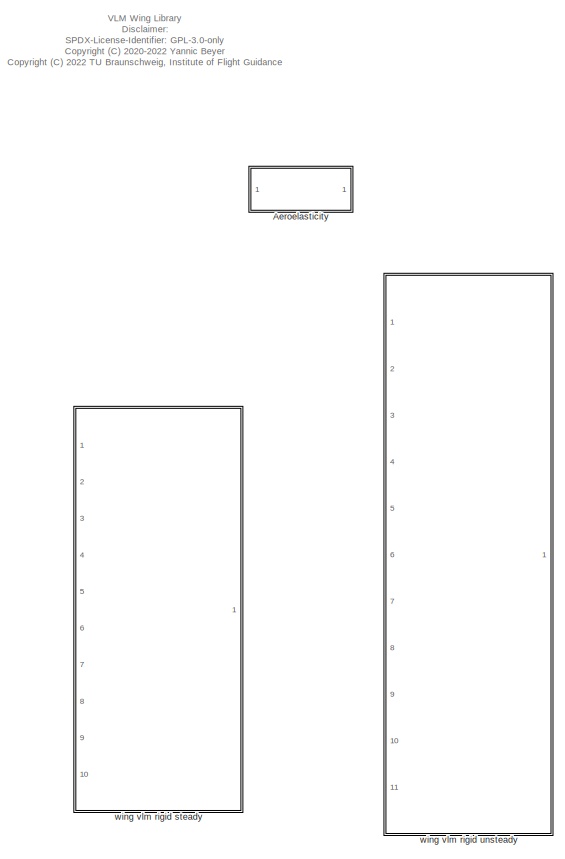
[diagram: root canvas - part 1/3, top left region]
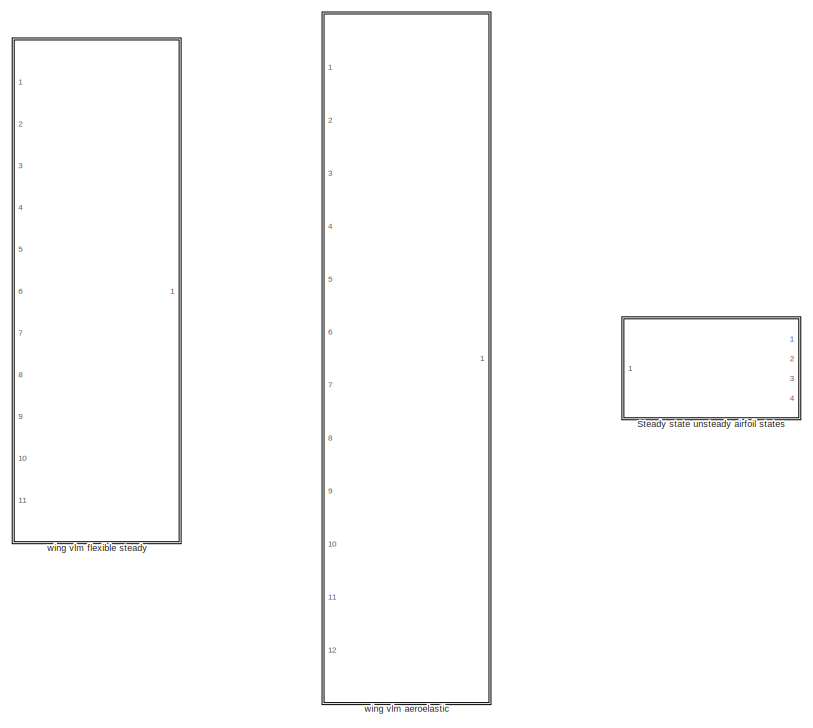
[diagram: root canvas - part 2/3, full width, middle band]
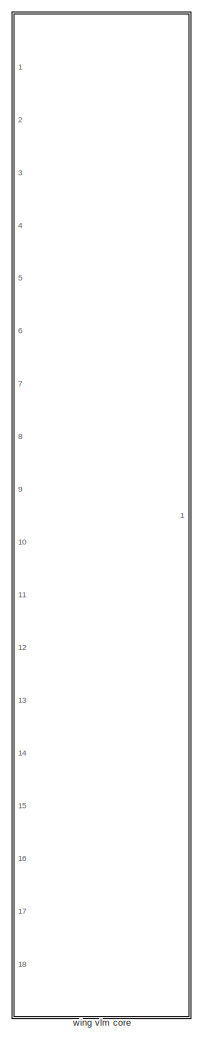
[diagram: root canvas - part 3/3, bottom center region]
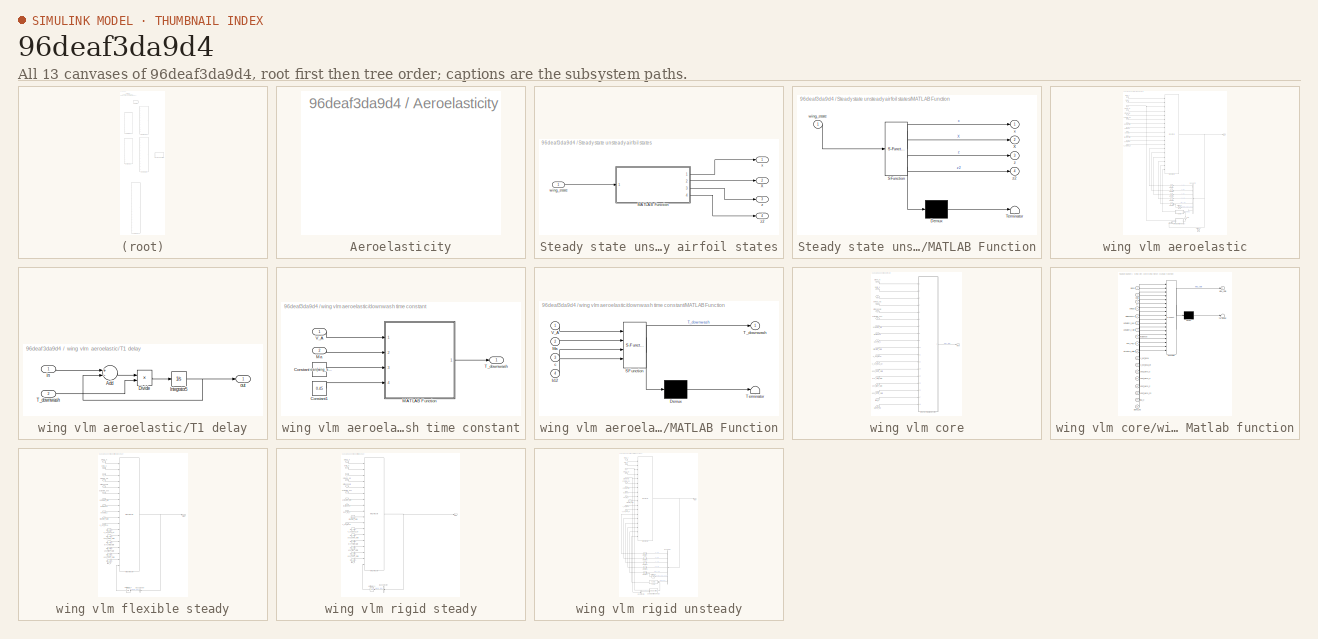
[diagram: thumbnail index - all 13 canvases of the model, root first then tree order]
MODEL slx_96deaf3da9d4
KIND library
CONFIG AbsTol = auto
CONFIG EnableMultiTasking = off
CONFIG FixedStep = auto
CONFIG MaxStep = auto
CONFIG MinStep = auto
CONFIG RelTol = 1e-3
CONFIG SampleTimeConstraint = Unconstrained
CONFIG Solver = VariableStepAuto
CONFIG SolverName = VariableStepAuto
CONFIG StartTime = 0.0
CONFIG StopTime = 10.0
BLOCK [SubSystem] Aeroelasticity
  OpenFcn = aeroelasticity_lib
  Ports = []
  RequestExecContextInheritance = off
BLOCK [SubSystem] Steady state unsteady airfoil states
  Ports = [1, 4]
  RequestExecContextInheritance = off
BLOCK [SubSystem] Steady state unsteady airfoil states/MATLAB Function
  ErrorFcn = Stateflow.Translate.translate
  PermitHierarchicalResolution = ExplicitOnly
  Ports = [1, 4]
  RequestExecContextInheritance = off
  SFBlockType = MATLAB Function
  TreatAsAtomicUnit = on
BLOCK [Demux] Steady state unsteady airfoil states/MATLAB Function/ Demux 
  Outputs = 1
  Ports = [1, 1]
BLOCK [S-Function] Steady state unsteady airfoil states/MATLAB Function/ SFunction 
  EnableBusSupport = on
  FunctionName = sf_sfun
  Parameters = wing_airfoil,wing_config
  PortCounts = [1 5]
  Ports = [1, 5]
  SFcnIsStateOwnerBlock = off
  SFunctionDeploymentMode = off
  Tag = Stateflow S-Function vlm_wing_lib 3
BLOCK [Terminator] Steady state unsteady airfoil states/MATLAB Function/ Terminator 
BLOCK [Outport] Steady state unsteady airfoil states/MATLAB Function/X
  IconDisplay = Port number
  Port = 2
BLOCK [Inport] Steady state unsteady airfoil states/MATLAB Function/wing_state
  IconDisplay = Port number
BLOCK [Outport] Steady state unsteady airfoil states/MATLAB Function/x
  IconDisplay = Port number
BLOCK [Outport] Steady state unsteady airfoil states/MATLAB Function/z
  IconDisplay = Port number
  Port = 3
BLOCK [Outport] Steady state unsteady airfoil states/MATLAB Function/z2
  IconDisplay = Port number
  Port = 4
BLOCK [Outport] Steady state unsteady airfoil states/X
  IconDisplay = Port number
  Port = 2
BLOCK [Inport] Steady state unsteady airfoil states/wing_state
  IconDisplay = Port number
BLOCK [Outport] Steady state unsteady airfoil states/x
  IconDisplay = Port number
BLOCK [Outport] Steady state unsteady airfoil states/z
  IconDisplay = Port number
  Port = 3
BLOCK [Outport] Steady state unsteady airfoil states/z2
  IconDisplay = Port number
  Port = 4
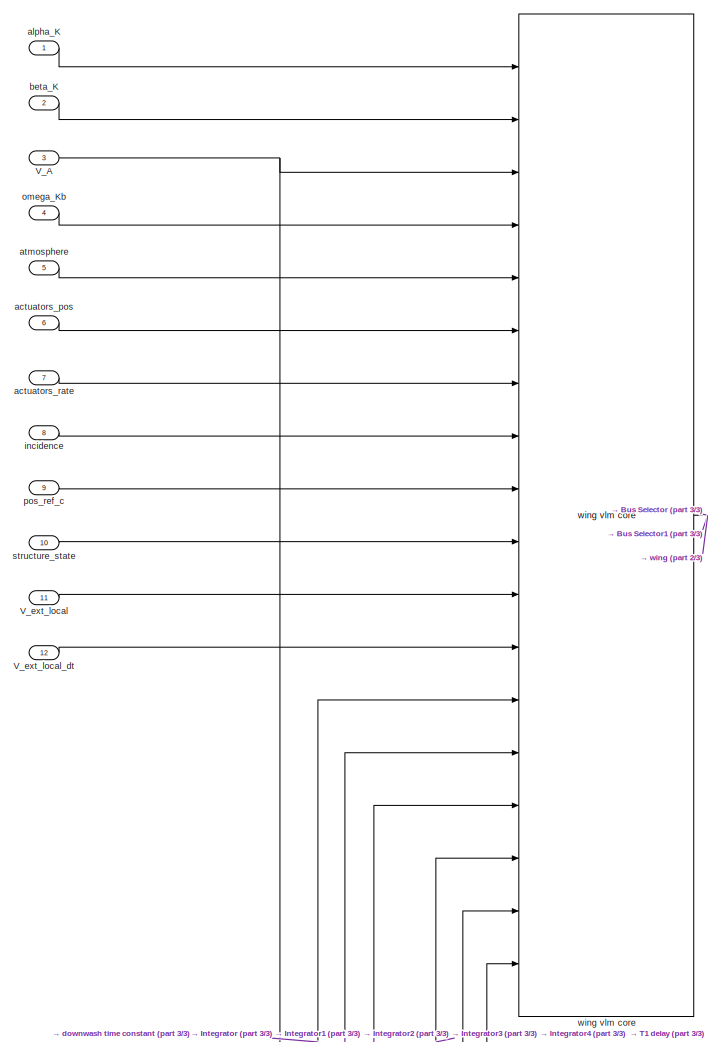
[diagram: wing vlm aeroelastic - part 1/3, top left region]
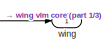
[diagram: wing vlm aeroelastic - part 2/3, top right region]
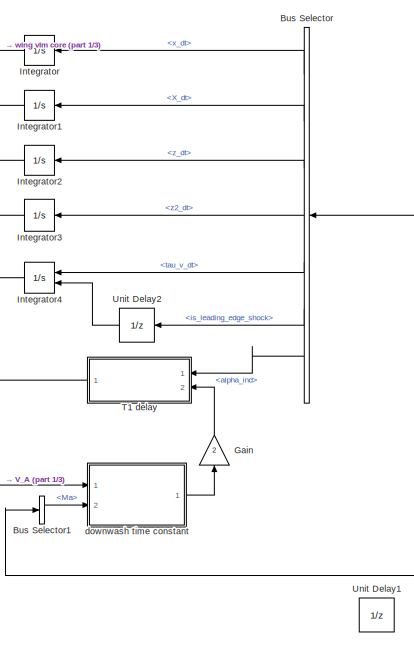
[diagram: wing vlm aeroelastic - part 3/3, bottom center region]
BLOCK [SubSystem] wing vlm aeroelastic
  Ports = [12, 1]
  RequestExecContextInheritance = off
BLOCK [BusSelector] wing vlm aeroelastic/Bus Selector
  OutputAsBus = off
  OutputSignals = aero.unsteady.x_dt,aero.unsteady.X_dt,aero.unsteady.z_dt,aero.unsteady.z2_dt,aero.unsteady.tau_v_dt,aero.unsteady.is_leading_edge_shock,aero.circulation.alpha_ind
  Ports = [1, 7]
BLOCK [BusSelector] wing vlm aeroelastic/Bus Selector1
  OutputAsBus = off
  OutputSignals = aero.circulation.Ma
  Ports = [1, 1]
BLOCK [Gain] wing vlm aeroelastic/Gain
  Gain = 2
  OutDataTypeStr = Inherit: Inherit via internal rule
  ParamDataTypeStr = Inherit: Inherit via internal rule
  SaturateOnIntegerOverflow = off
BLOCK [Integrator] wing vlm aeroelastic/Integrator
  InitialCondition = unst_aero_state_init
  Ports = [1, 1]
BLOCK [Integrator] wing vlm aeroelastic/Integrator1
  InitialCondition = dyn_stall_state_init
  Ports = [1, 1]
BLOCK [Integrator] wing vlm aeroelastic/Integrator2
  InitialCondition = unst_flap_state_init
  Ports = [1, 1]
BLOCK [Integrator] wing vlm aeroelastic/Integrator3
  InitialCondition = unst_act2_state_init
  Ports = [1, 1]
BLOCK [Integrator] wing vlm aeroelastic/Integrator4
  ExternalReset = falling
  InitialCondition = tau_v_init
  Ports = [2, 1]
BLOCK [SubSystem] wing vlm aeroelastic/T1 delay
  Ports = [2, 1]
  RequestExecContextInheritance = off
BLOCK [Sum] wing vlm aeroelastic/T1 delay/Add
  InputSameDT = off
  Inputs = +-
  OutDataTypeStr = Inherit: Inherit via internal rule
  Ports = [2, 1]
  SaturateOnIntegerOverflow = off
BLOCK [Product] wing vlm aeroelastic/T1 delay/Divide
  InputSameDT = off
  Inputs = */
  OutDataTypeStr = Inherit: Inherit via internal rule
  Ports = [2, 1]
  RndMeth = Floor
  SaturateOnIntegerOverflow = off
BLOCK [Integrator] wing vlm aeroelastic/T1 delay/Integrator5
  InitialCondition = alpha_ind_init
  Ports = [1, 1]
BLOCK [Inport] wing vlm aeroelastic/T1 delay/T_downwash
  IconDisplay = Port number
  Port = 2
BLOCK [Inport] wing vlm aeroelastic/T1 delay/in
  IconDisplay = Port number
BLOCK [Outport] wing vlm aeroelastic/T1 delay/out
  IconDisplay = Port number
BLOCK [UnitDelay] wing vlm aeroelastic/Unit Delay1
  Commented = on
  InitialCondition = alpha_ind_init
  InputProcessing = Elements as channels (sample based)
  SampleTime = -1
BLOCK [UnitDelay] wing vlm aeroelastic/Unit Delay2
  InputProcessing = Elements as channels (sample based)
  SampleTime = -1
BLOCK [Inport] wing vlm aeroelastic/V_A
  IconDisplay = Port number
  Port = 3
BLOCK [Inport] wing vlm aeroelastic/V_ext_local
  IconDisplay = Port number
  Port = 11
BLOCK [Inport] wing vlm aeroelastic/V_ext_local_dt
  IconDisplay = Port number
  Port = 12
BLOCK [Inport] wing vlm aeroelastic/actuators_pos
  IconDisplay = Port number
  Port = 6
BLOCK [Inport] wing vlm aeroelastic/actuators_rate
  IconDisplay = Port number
  Port = 7
BLOCK [Inport] wing vlm aeroelastic/alpha_K
  IconDisplay = Port number
BLOCK [Inport] wing vlm aeroelastic/atmosphere
  IconDisplay = Port number
  Port = 5
BLOCK [Inport] wing vlm aeroelastic/beta_K
  IconDisplay = Port number
  Port = 2
BLOCK [SubSystem] wing vlm aeroelastic/downwash time constant
  Ports = [2, 1]
  RequestExecContextInheritance = off
BLOCK [Constant] wing vlm aeroelastic/downwash time constant/Constant
  Value = mean(wing_struct.geometry.ctrl_pt.c)
  VectorParams1D = off
BLOCK [Constant] wing vlm aeroelastic/downwash time constant/Constant1
  Value = 0.45
BLOCK [SubSystem] wing vlm aeroelastic/downwash time constant/MATLAB Function
  ErrorFcn = Stateflow.Translate.translate
  PermitHierarchicalResolution = ExplicitOnly
  Ports = [4, 1]
  RequestExecContextInheritance = off
  SFBlockType = MATLAB Function
  TreatAsAtomicUnit = on
BLOCK [Demux] wing vlm aeroelastic/downwash time constant/MATLAB Function/ Demux 
  Outputs = 1
  Ports = [1, 1]
BLOCK [S-Function] wing vlm aeroelastic/downwash time constant/MATLAB Function/ SFunction 
  EnableBusSupport = off
  FunctionName = sf_sfun
  PortCounts = [4 2]
  Ports = [4, 2]
  SFcnIsStateOwnerBlock = off
  SFunctionDeploymentMode = off
  Tag = Stateflow S-Function vlm_wing_lib 2
BLOCK [Terminator] wing vlm aeroelastic/downwash time constant/MATLAB Function/ Terminator 
BLOCK [Inport] wing vlm aeroelastic/downwash time constant/MATLAB Function/Ma
  IconDisplay = Port number
  Port = 2
BLOCK [Outport] wing vlm aeroelastic/downwash time constant/MATLAB Function/T_downwash
  IconDisplay = Port number
BLOCK [Inport] wing vlm aeroelastic/downwash time constant/MATLAB Function/V_A
  IconDisplay = Port number
BLOCK [Inport] wing vlm aeroelastic/downwash time constant/MATLAB Function/b12
  IconDisplay = Port number
  Port = 4
BLOCK [Inport] wing vlm aeroelastic/downwash time constant/MATLAB Function/c
  IconDisplay = Port number
  Port = 3
BLOCK [Inport] wing vlm aeroelastic/downwash time constant/Ma
  IconDisplay = Port number
  Port = 2
BLOCK [Outport] wing vlm aeroelastic/downwash time constant/T_downwash
  IconDisplay = Port number
BLOCK [Inport] wing vlm aeroelastic/downwash time constant/V_A
  IconDisplay = Port number
BLOCK [Inport] wing vlm aeroelastic/incidence
  IconDisplay = Port number
  Port = 8
BLOCK [Inport] wing vlm aeroelastic/omega_Kb
  IconDisplay = Port number
  Port = 4
BLOCK [Inport] wing vlm aeroelastic/pos_ref_c
  IconDisplay = Port number
  Port = 9
BLOCK [Inport] wing vlm aeroelastic/structure_state
  IconDisplay = Port number
  Port = 10
BLOCK [Outport] wing vlm aeroelastic/wing
  IconDisplay = Port number
BLOCK [Reference] wing vlm aeroelastic/wing vlm core  REF=$bdroot/wing vlm core
  Ports = [18, 1]
  SourceBlock = $bdroot/wing vlm core
BLOCK [SubSystem] wing vlm core
  Ports = [18, 1]
  RequestExecContextInheritance = off
BLOCK [Inport] wing vlm core/V_A
  IconDisplay = Port number
  Port = 3
BLOCK [Inport] wing vlm core/V_ext_local
  IconDisplay = Port number
  Port = 11
BLOCK [Inport] wing vlm core/V_ext_local_dt
  IconDisplay = Port number
  Port = 12
BLOCK [Inport] wing vlm core/actuators_pos
  IconDisplay = Port number
  Port = 6
BLOCK [Inport] wing vlm core/actuators_rate
  IconDisplay = Port number
  Port = 7
BLOCK [Inport] wing vlm core/alpha_K
  IconDisplay = Port number
BLOCK [Inport] wing vlm core/alpha_ind
  IconDisplay = Port number
  Port = 18
BLOCK [Inport] wing vlm core/atmosphere
  IconDisplay = Port number
  Port = 5
BLOCK [Inport] wing vlm core/beta_K
  IconDisplay = Port number
  Port = 2
BLOCK [Inport] wing vlm core/dyn_stall_state
  IconDisplay = Port number
  Port = 14
BLOCK [Inport] wing vlm core/incidence
  IconDisplay = Port number
  Port = 8
BLOCK [Inport] wing vlm core/omega_Kb
  IconDisplay = Port number
  Port = 4
BLOCK [Inport] wing vlm core/pos_ref_c
  IconDisplay = Port number
  Port = 9
BLOCK [Inport] wing vlm core/structure_state
  IconDisplay = Port number
  Port = 10
BLOCK [Inport] wing vlm core/tau_v
  IconDisplay = Port number
  Port = 17
BLOCK [Inport] wing vlm core/unst_act2_state
  IconDisplay = Port number
  Port = 16
BLOCK [Inport] wing vlm core/unst_aero_state
  IconDisplay = Port number
  Port = 13
BLOCK [Inport] wing vlm core/unst_flap_state
  IconDisplay = Port number
  Port = 15
BLOCK [Outport] wing vlm core/wing
  IconDisplay = Port number
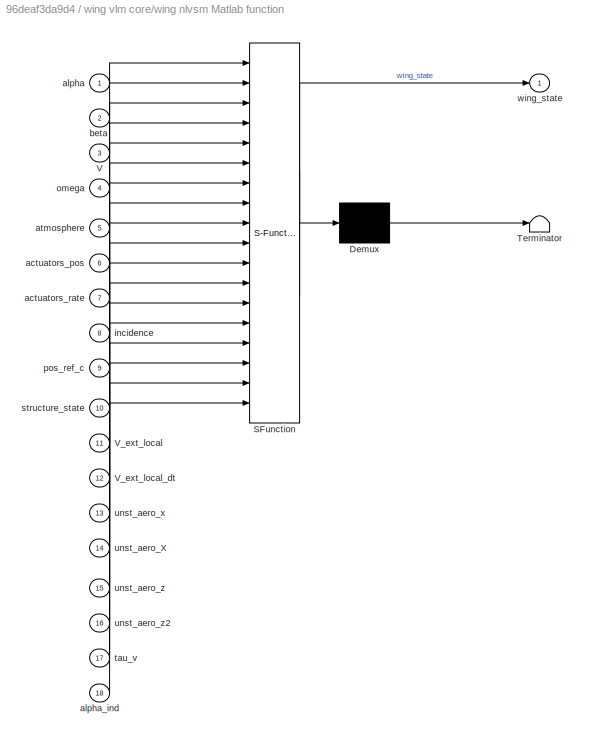
BLOCK [SubSystem] wing vlm core/wing nlvsm Matlab function
  ErrorFcn = Stateflow.Translate.translate
  PermitHierarchicalResolution = ExplicitOnly
  Ports = [18, 1]
  RequestExecContextInheritance = off
  SFBlockType = MATLAB Function
  TreatAsAtomicUnit = on
BLOCK [Demux] wing vlm core/wing nlvsm Matlab function/ Demux 
  Outputs = 1
  Ports = [1, 1]
BLOCK [S-Function] wing vlm core/wing nlvsm Matlab function/ SFunction 
  EnableBusSupport = off
  FunctionName = sf_sfun
  Parameters = wing_struct
  PortCounts = [18 2]
  Ports = [18, 2]
  SFcnIsStateOwnerBlock = off
  SFunctionDeploymentMode = off
  Tag = Stateflow S-Function vlm_wing_lib 1
BLOCK [Terminator] wing vlm core/wing nlvsm Matlab function/ Terminator 
BLOCK [Inport] wing vlm core/wing nlvsm Matlab function/V
  IconDisplay = Port number
  Port = 3
BLOCK [Inport] wing vlm core/wing nlvsm Matlab function/V_ext_local
  IconDisplay = Port number
  Port = 11
BLOCK [Inport] wing vlm core/wing nlvsm Matlab function/V_ext_local_dt
  IconDisplay = Port number
  Port = 12
BLOCK [Inport] wing vlm core/wing nlvsm Matlab function/actuators_pos
  IconDisplay = Port number
  Port = 6
BLOCK [Inport] wing vlm core/wing nlvsm Matlab function/actuators_rate
  IconDisplay = Port number
  Port = 7
BLOCK [Inport] wing vlm core/wing nlvsm Matlab function/alpha
  IconDisplay = Port number
BLOCK [Inport] wing vlm core/wing nlvsm Matlab function/alpha_ind
  IconDisplay = Port number
  Port = 18
BLOCK [Inport] wing vlm core/wing nlvsm Matlab function/atmosphere
  IconDisplay = Port number
  Port = 5
BLOCK [Inport] wing vlm core/wing nlvsm Matlab function/beta
  IconDisplay = Port number
  Port = 2
BLOCK [Inport] wing vlm core/wing nlvsm Matlab function/incidence
  IconDisplay = Port number
  Port = 8
BLOCK [Inport] wing vlm core/wing nlvsm Matlab function/omega
  IconDisplay = Port number
  Port = 4
BLOCK [Inport] wing vlm core/wing nlvsm Matlab function/pos_ref_c
  IconDisplay = Port number
  Port = 9
BLOCK [Inport] wing vlm core/wing nlvsm Matlab function/structure_state
  IconDisplay = Port number
  Port = 10
BLOCK [Inport] wing vlm core/wing nlvsm Matlab function/tau_v
  IconDisplay = Port number
  Port = 17
BLOCK [Inport] wing vlm core/wing nlvsm Matlab function/unst_aero_X
  IconDisplay = Port number
  Port = 14
BLOCK [Inport] wing vlm core/wing nlvsm Matlab function/unst_aero_x
  IconDisplay = Port number
  Port = 13
BLOCK [Inport] wing vlm core/wing nlvsm Matlab function/unst_aero_z
  IconDisplay = Port number
  Port = 15
BLOCK [Inport] wing vlm core/wing nlvsm Matlab function/unst_aero_z2
  IconDisplay = Port number
  Port = 16
BLOCK [Outport] wing vlm core/wing nlvsm Matlab function/wing_state
  IconDisplay = Port number
BLOCK [SubSystem] wing vlm flexible steady
  Ports = [11, 1]
  RequestExecContextInheritance = off
BLOCK [BusSelector] wing vlm flexible steady/Bus Selector
  OutputAsBus = off
  OutputSignals = aero.circulation.alpha_ind
  Ports = [1, 1]
BLOCK [UnitDelay] wing vlm flexible steady/Unit Delay1
  InitialCondition = alpha_ind_init
  InputProcessing = Elements as channels (sample based)
  SampleTime = -1
BLOCK [Inport] wing vlm flexible steady/V_A
  IconDisplay = Port number
  Port = 3
BLOCK [Inport] wing vlm flexible steady/V_ext_local
  IconDisplay = Port number
  Port = 11
BLOCK [Constant] wing vlm flexible steady/V_ext_local_dt
  Value = wing_struct.state.external.V_Wb_dt
BLOCK [Inport] wing vlm flexible steady/actuators_pos
  IconDisplay = Port number
  Port = 6
BLOCK [Inport] wing vlm flexible steady/actuators_rate
  IconDisplay = Port number
  Port = 7
BLOCK [Inport] wing vlm flexible steady/alpha_K
  IconDisplay = Port number
BLOCK [Inport] wing vlm flexible steady/atmosphere
  IconDisplay = Port number
  Port = 5
BLOCK [Inport] wing vlm flexible steady/beta_K
  IconDisplay = Port number
  Port = 2
BLOCK [Constant] wing vlm flexible steady/dyn_stall_state
  Value = wing_struct.state.aero.unsteady.X
BLOCK [Inport] wing vlm flexible steady/incidence
  IconDisplay = Port number
  Port = 8
BLOCK [Inport] wing vlm flexible steady/omega_Kb
  IconDisplay = Port number
  Port = 4
BLOCK [Inport] wing vlm flexible steady/pos_ref_c
  IconDisplay = Port number
  Port = 9
BLOCK [Inport] wing vlm flexible steady/structure_state
  IconDisplay = Port number
  Port = 10
BLOCK [Constant] wing vlm flexible steady/tau_v
  Value = wing_struct.state.aero.unsteady.tau_v
BLOCK [Constant] wing vlm flexible steady/unst_act2_state
  Value = wing_struct.state.aero.unsteady.z2
BLOCK [Constant] wing vlm flexible steady/unst_aero_state
  Value = wing_struct.state.aero.unsteady.x
BLOCK [Constant] wing vlm flexible steady/unst_flap_state
  Value = wing_struct.state.aero.unsteady.z
BLOCK [Outport] wing vlm flexible steady/wing
  IconDisplay = Port number
BLOCK [Reference] wing vlm flexible steady/wing vlm core  REF=$bdroot/wing vlm core
  Ports = [18, 1]
  SourceBlock = $bdroot/wing vlm core
BLOCK [SubSystem] wing vlm rigid steady
  Ports = [10, 1]
  RequestExecContextInheritance = off
BLOCK [BusSelector] wing vlm rigid steady/Bus Selector
  OutputAsBus = off
  OutputSignals = aero.circulation.alpha_ind
  Ports = [1, 1]
BLOCK [UnitDelay] wing vlm rigid steady/Unit Delay1
  InitialCondition = alpha_ind_init
  InputProcessing = Elements as channels (sample based)
  SampleTime = -1
BLOCK [Inport] wing vlm rigid steady/V_A
  IconDisplay = Port number
  Port = 3
BLOCK [Inport] wing vlm rigid steady/V_ext_local
  IconDisplay = Port number
  Port = 10
BLOCK [Constant] wing vlm rigid steady/V_ext_local_dt
  Value = wing_struct.state.external.V_Wb_dt
BLOCK [Inport] wing vlm rigid steady/actuators_pos
  IconDisplay = Port number
  Port = 6
BLOCK [Inport] wing vlm rigid steady/actuators_rate
  IconDisplay = Port number
  Port = 7
BLOCK [Inport] wing vlm rigid steady/alpha_K
  IconDisplay = Port number
BLOCK [Inport] wing vlm rigid steady/atmosphere
  IconDisplay = Port number
  Port = 5
BLOCK [Inport] wing vlm rigid steady/beta_K
  IconDisplay = Port number
  Port = 2
BLOCK [Constant] wing vlm rigid steady/dyn_stall_state
  Value = wing_struct.state.aero.unsteady.X
BLOCK [Inport] wing vlm rigid steady/incidence
  IconDisplay = Port number
  Port = 8
BLOCK [Inport] wing vlm rigid steady/omega_Kb
  IconDisplay = Port number
  Port = 4
BLOCK [Inport] wing vlm rigid steady/pos_ref_c
  IconDisplay = Port number
  Port = 9
BLOCK [Constant] wing vlm rigid steady/structure_state
  Value = zeros(2,1)
  VectorParams1D = off
BLOCK [Constant] wing vlm rigid steady/tau_v
  Value = wing_struct.state.aero.unsteady.tau_v
BLOCK [Constant] wing vlm rigid steady/unst_act2_state
  Value = wing_struct.state.aero.unsteady.z2
BLOCK [Constant] wing vlm rigid steady/unst_aero_state
  Value = wing_struct.state.aero.unsteady.x
BLOCK [Constant] wing vlm rigid steady/unst_flap_state
  Value = wing_struct.state.aero.unsteady.z
BLOCK [Outport] wing vlm rigid steady/wing
  IconDisplay = Port number
BLOCK [Reference] wing vlm rigid steady/wing vlm core  REF=$bdroot/wing vlm core
  Ports = [18, 1]
  SourceBlock = $bdroot/wing vlm core
BLOCK [SubSystem] wing vlm rigid unsteady
  Ports = [11, 1]
  RequestExecContextInheritance = off
BLOCK [BusSelector] wing vlm rigid unsteady/Bus Selector
  OutputAsBus = off
  OutputSignals = aero.unsteady.x_dt,aero.unsteady.X_dt,aero.unsteady.z_dt,aero.unsteady.z2_dt,aero.unsteady.tau_v_dt,aero.unsteady.is_leading_edge_shock,aero.circulation.alpha_ind
  Ports = [1, 7]
BLOCK [BusSelector] wing vlm rigid unsteady/Bus Selector3
  OutputAsBus = off
  OutputSignals = a
  Ports = [1, 1]
BLOCK [Integrator] wing vlm rigid unsteady/Integrator
  InitialCondition = unst_aero_state_init
  Ports = [1, 1]
BLOCK [Integrator] wing vlm rigid unsteady/Integrator1
  InitialCondition = dyn_stall_state_init
  Ports = [1, 1]
BLOCK [Integrator] wing vlm rigid unsteady/Integrator2
  InitialCondition = unst_flap_state_init
  Ports = [1, 1]
BLOCK [Integrator] wing vlm rigid unsteady/Integrator3
  InitialCondition = unst_act2_state_init
  Ports = [1, 1]
BLOCK [Integrator] wing vlm rigid unsteady/Integrator4
  ExternalReset = falling
  InitialCondition = tau_v_init
  Ports = [2, 1]
BLOCK [Reference] wing vlm rigid unsteady/T1 delay  REF=$bdroot/wing vlm aeroelastic/T1 delay
  Ports = [2, 1]
  SourceBlock = $bdroot/wing vlm aeroelastic/T1 delay
BLOCK [UnitDelay] wing vlm rigid unsteady/Unit Delay2
  InputProcessing = Elements as channels (sample based)
  SampleTime = -1
BLOCK [Inport] wing vlm rigid unsteady/V_A
  IconDisplay = Port number
  Port = 3
BLOCK [Inport] wing vlm rigid unsteady/V_ext_local
  IconDisplay = Port number
  Port = 10
BLOCK [Inport] wing vlm rigid unsteady/V_ext_local_dt
  IconDisplay = Port number
  Port = 11
BLOCK [Inport] wing vlm rigid unsteady/actuators_pos
  IconDisplay = Port number
  Port = 6
BLOCK [Inport] wing vlm rigid unsteady/actuators_rate
  IconDisplay = Port number
  Port = 7
BLOCK [Inport] wing vlm rigid unsteady/alpha_K
  IconDisplay = Port number
BLOCK [Inport] wing vlm rigid unsteady/atmosphere
  IconDisplay = Port number
  Port = 5
BLOCK [Inport] wing vlm rigid unsteady/beta_K
  IconDisplay = Port number
  Port = 2
BLOCK [Reference] wing vlm rigid unsteady/downwash time constant  REF=$bdroot/wing vlm aeroelastic/downwash time constant
  Ports = [2, 1]
  SourceBlock = $bdroot/wing vlm aeroelastic/downwash time constant
  SourceType = SubSystem
BLOCK [Inport] wing vlm rigid unsteady/incidence
  IconDisplay = Port number
  Port = 8
BLOCK [Inport] wing vlm rigid unsteady/omega_Kb
  IconDisplay = Port number
  Port = 4
BLOCK [Inport] wing vlm rigid unsteady/pos_ref_c
  IconDisplay = Port number
  Port = 9
BLOCK [Constant] wing vlm rigid unsteady/structure_state
  Value = zeros(2,1)
  VectorParams1D = off
BLOCK [Outport] wing vlm rigid unsteady/wing
  IconDisplay = Port number
BLOCK [Reference] wing vlm rigid unsteady/wing vlm core  REF=$bdroot/wing vlm core
  Ports = [18, 1]
  SourceBlock = $bdroot/wing vlm core
ANNOTATION (root): VLM Wing Library Disclaimer: SPDX-License-Identifier: GPL-3.0-only <copyright redacted>
LINE Steady state unsteady airfoil states/MATLAB Function:1 -> Steady state unsteady airfoil states/x:1
LINE Steady state unsteady airfoil states/MATLAB Function:2 -> Steady state unsteady airfoil states/X:1
LINE Steady state unsteady airfoil states/MATLAB Function:3 -> Steady state unsteady airfoil states/z:1
LINE Steady state unsteady airfoil states/MATLAB Function:4 -> Steady state unsteady airfoil states/z2:1
LINE Steady state unsteady airfoil states/wing_state:1 -> Steady state unsteady airfoil states/MATLAB Function:1
LINE wing vlm aeroelastic/Bus Selector1:1 -> wing vlm aeroelastic/downwash time constant:2
LINE wing vlm aeroelastic/Bus Selector:1 -> wing vlm aeroelastic/Integrator:1
LINE wing vlm aeroelastic/Bus Selector:2 -> wing vlm aeroelastic/Integrator1:1
LINE wing vlm aeroelastic/Bus Selector:3 -> wing vlm aeroelastic/Integrator2:1
LINE wing vlm aeroelastic/Bus Selector:4 -> wing vlm aeroelastic/Integrator3:1
LINE wing vlm aeroelastic/Bus Selector:5 -> wing vlm aeroelastic/Integrator4:1
LINE wing vlm aeroelastic/Bus Selector:6 -> wing vlm aeroelastic/Unit Delay2:1
LINE wing vlm aeroelastic/Bus Selector:7 -> wing vlm aeroelastic/T1 delay:1
LINE wing vlm aeroelastic/Gain:1 -> wing vlm aeroelastic/T1 delay:2
LINE wing vlm aeroelastic/Integrator1:1 -> wing vlm aeroelastic/wing vlm core:14
LINE wing vlm aeroelastic/Integrator2:1 -> wing vlm aeroelastic/wing vlm core:15
LINE wing vlm aeroelastic/Integrator3:1 -> wing vlm aeroelastic/wing vlm core:16
LINE wing vlm aeroelastic/Integrator4:1 -> wing vlm aeroelastic/wing vlm core:17
LINE wing vlm aeroelastic/Integrator:1 -> wing vlm aeroelastic/wing vlm core:13
LINE wing vlm aeroelastic/T1 delay/Add:1 -> wing vlm aeroelastic/T1 delay/Divide:1
LINE wing vlm aeroelastic/T1 delay/Divide:1 -> wing vlm aeroelastic/T1 delay/Integrator5:1
NET wing vlm aeroelastic/T1 delay/Integrator5:1 -> wing vlm aeroelastic/T1 delay/Add:2, wing vlm aeroelastic/T1 delay/out:1
LINE wing vlm aeroelastic/T1 delay/T_downwash:1 -> wing vlm aeroelastic/T1 delay/Divide:2
LINE wing vlm aeroelastic/T1 delay/in:1 -> wing vlm aeroelastic/T1 delay/Add:1
LINE wing vlm aeroelastic/T1 delay:1 -> wing vlm aeroelastic/wing vlm core:18
LINE wing vlm aeroelastic/Unit Delay2:1 -> wing vlm aeroelastic/Integrator4:2
NET wing vlm aeroelastic/V_A:1 -> wing vlm aeroelastic/downwash time constant:1, wing vlm aeroelastic/wing vlm core:3
LINE wing vlm aeroelastic/V_ext_local:1 -> wing vlm aeroelastic/wing vlm core:11
LINE wing vlm aeroelastic/V_ext_local_dt:1 -> wing vlm aeroelastic/wing vlm core:12
LINE wing vlm aeroelastic/actuators_pos:1 -> wing vlm aeroelastic/wing vlm core:6
LINE wing vlm aeroelastic/actuators_rate:1 -> wing vlm aeroelastic/wing vlm core:7
LINE wing vlm aeroelastic/alpha_K:1 -> wing vlm aeroelastic/wing vlm core:1
LINE wing vlm aeroelastic/atmosphere:1 -> wing vlm aeroelastic/wing vlm core:5
LINE wing vlm aeroelastic/beta_K:1 -> wing vlm aeroelastic/wing vlm core:2
LINE wing vlm aeroelastic/downwash time constant/Constant1:1 -> wing vlm aeroelastic/downwash time constant/MATLAB Function:4
LINE wing vlm aeroelastic/downwash time constant/Constant:1 -> wing vlm aeroelastic/downwash time constant/MATLAB Function:3
LINE wing vlm aeroelastic/downwash time constant/MATLAB Function:1 -> wing vlm aeroelastic/downwash time constant/T_downwash:1
LINE wing vlm aeroelastic/downwash time constant/Ma:1 -> wing vlm aeroelastic/downwash time constant/MATLAB Function:2
LINE wing vlm aeroelastic/downwash time constant/V_A:1 -> wing vlm aeroelastic/downwash time constant/MATLAB Function:1
LINE wing vlm aeroelastic/downwash time constant:1 -> wing vlm aeroelastic/Gain:1
LINE wing vlm aeroelastic/incidence:1 -> wing vlm aeroelastic/wing vlm core:8
LINE wing vlm aeroelastic/omega_Kb:1 -> wing vlm aeroelastic/wing vlm core:4
LINE wing vlm aeroelastic/pos_ref_c:1 -> wing vlm aeroelastic/wing vlm core:9
LINE wing vlm aeroelastic/structure_state:1 -> wing vlm aeroelastic/wing vlm core:10
NET wing vlm aeroelastic/wing vlm core:1 -> wing vlm aeroelastic/Bus Selector1:1, wing vlm aeroelastic/Bus Selector:1, wing vlm aeroelastic/wing:1
LINE wing vlm core/V_A:1 -> wing vlm core/wing nlvsm Matlab function:3
LINE wing vlm core/V_ext_local:1 -> wing vlm core/wing nlvsm Matlab function:11
LINE wing vlm core/V_ext_local_dt:1 -> wing vlm core/wing nlvsm Matlab function:12
LINE wing vlm core/actuators_pos:1 -> wing vlm core/wing nlvsm Matlab function:6
LINE wing vlm core/actuators_rate:1 -> wing vlm core/wing nlvsm Matlab function:7
LINE wing vlm core/alpha_K:1 -> wing vlm core/wing nlvsm Matlab function:1
LINE wing vlm core/alpha_ind:1 -> wing vlm core/wing nlvsm Matlab function:18
LINE wing vlm core/atmosphere:1 -> wing vlm core/wing nlvsm Matlab function:5
LINE wing vlm core/beta_K:1 -> wing vlm core/wing nlvsm Matlab function:2
LINE wing vlm core/dyn_stall_state:1 -> wing vlm core/wing nlvsm Matlab function:14
LINE wing vlm core/incidence:1 -> wing vlm core/wing nlvsm Matlab function:8
LINE wing vlm core/omega_Kb:1 -> wing vlm core/wing nlvsm Matlab function:4
LINE wing vlm core/pos_ref_c:1 -> wing vlm core/wing nlvsm Matlab function:9
LINE wing vlm core/structure_state:1 -> wing vlm core/wing nlvsm Matlab function:10
LINE wing vlm core/tau_v:1 -> wing vlm core/wing nlvsm Matlab function:17
LINE wing vlm core/unst_act2_state:1 -> wing vlm core/wing nlvsm Matlab function:16
LINE wing vlm core/unst_aero_state:1 -> wing vlm core/wing nlvsm Matlab function:13
LINE wing vlm core/unst_flap_state:1 -> wing vlm core/wing nlvsm Matlab function:15
LINE wing vlm core/wing nlvsm Matlab function:1 -> wing vlm core/wing:1
LINE wing vlm flexible steady/Bus Selector:1 -> wing vlm flexible steady/Unit Delay1:1
LINE wing vlm flexible steady/Unit Delay1:1 -> wing vlm flexible steady/wing vlm core:18
LINE wing vlm flexible steady/V_A:1 -> wing vlm flexible steady/wing vlm core:3
LINE wing vlm flexible steady/V_ext_local:1 -> wing vlm flexible steady/wing vlm core:11
LINE wing vlm flexible steady/V_ext_local_dt:1 -> wing vlm flexible steady/wing vlm core:12
LINE wing vlm flexible steady/actuators_pos:1 -> wing vlm flexible steady/wing vlm core:6
LINE wing vlm flexible steady/actuators_rate:1 -> wing vlm flexible steady/wing vlm core:7
LINE wing vlm flexible steady/alpha_K:1 -> wing vlm flexible steady/wing vlm core:1
LINE wing vlm flexible steady/atmosphere:1 -> wing vlm flexible steady/wing vlm core:5
LINE wing vlm flexible steady/beta_K:1 -> wing vlm flexible steady/wing vlm core:2
LINE wing vlm flexible steady/dyn_stall_state:1 -> wing vlm flexible steady/wing vlm core:14
LINE wing vlm flexible steady/incidence:1 -> wing vlm flexible steady/wing vlm core:8
LINE wing vlm flexible steady/omega_Kb:1 -> wing vlm flexible steady/wing vlm core:4
LINE wing vlm flexible steady/pos_ref_c:1 -> wing vlm flexible steady/wing vlm core:9
LINE wing vlm flexible steady/structure_state:1 -> wing vlm flexible steady/wing vlm core:10
LINE wing vlm flexible steady/tau_v:1 -> wing vlm flexible steady/wing vlm core:17
LINE wing vlm flexible steady/unst_act2_state:1 -> wing vlm flexible steady/wing vlm core:16
LINE wing vlm flexible steady/unst_aero_state:1 -> wing vlm flexible steady/wing vlm core:13
LINE wing vlm flexible steady/unst_flap_state:1 -> wing vlm flexible steady/wing vlm core:15
NET wing vlm flexible steady/wing vlm core:1 -> wing vlm flexible steady/Bus Selector:1, wing vlm flexible steady/wing:1
LINE wing vlm rigid steady/Bus Selector:1 -> wing vlm rigid steady/Unit Delay1:1
LINE wing vlm rigid steady/Unit Delay1:1 -> wing vlm rigid steady/wing vlm core:18
LINE wing vlm rigid steady/V_A:1 -> wing vlm rigid steady/wing vlm core:3
LINE wing vlm rigid steady/V_ext_local:1 -> wing vlm rigid steady/wing vlm core:11
LINE wing vlm rigid steady/V_ext_local_dt:1 -> wing vlm rigid steady/wing vlm core:12
LINE wing vlm rigid steady/actuators_pos:1 -> wing vlm rigid steady/wing vlm core:6
LINE wing vlm rigid steady/actuators_rate:1 -> wing vlm rigid steady/wing vlm core:7
LINE wing vlm rigid steady/alpha_K:1 -> wing vlm rigid steady/wing vlm core:1
LINE wing vlm rigid steady/atmosphere:1 -> wing vlm rigid steady/wing vlm core:5
LINE wing vlm rigid steady/beta_K:1 -> wing vlm rigid steady/wing vlm core:2
LINE wing vlm rigid steady/dyn_stall_state:1 -> wing vlm rigid steady/wing vlm core:14
LINE wing vlm rigid steady/incidence:1 -> wing vlm rigid steady/wing vlm core:8
LINE wing vlm rigid steady/omega_Kb:1 -> wing vlm rigid steady/wing vlm core:4
LINE wing vlm rigid steady/pos_ref_c:1 -> wing vlm rigid steady/wing vlm core:9
LINE wing vlm rigid steady/structure_state:1 -> wing vlm rigid steady/wing vlm core:10
LINE wing vlm rigid steady/tau_v:1 -> wing vlm rigid steady/wing vlm core:17
LINE wing vlm rigid steady/unst_act2_state:1 -> wing vlm rigid steady/wing vlm core:16
LINE wing vlm rigid steady/unst_aero_state:1 -> wing vlm rigid steady/wing vlm core:13
LINE wing vlm rigid steady/unst_flap_state:1 -> wing vlm rigid steady/wing vlm core:15
NET wing vlm rigid steady/wing vlm core:1 -> wing vlm rigid steady/Bus Selector:1, wing vlm rigid steady/wing:1
LINE wing vlm rigid unsteady/Bus Selector3:1 -> wing vlm rigid unsteady/downwash time constant:2
LINE wing vlm rigid unsteady/Bus Selector:1 -> wing vlm rigid unsteady/Integrator:1
LINE wing vlm rigid unsteady/Bus Selector:2 -> wing vlm rigid unsteady/Integrator1:1
LINE wing vlm rigid unsteady/Bus Selector:3 -> wing vlm rigid unsteady/Integrator2:1
LINE wing vlm rigid unsteady/Bus Selector:4 -> wing vlm rigid unsteady/Integrator3:1
LINE wing vlm rigid unsteady/Bus Selector:5 -> wing vlm rigid unsteady/Integrator4:1
LINE wing vlm rigid unsteady/Bus Selector:6 -> wing vlm rigid unsteady/Unit Delay2:1
LINE wing vlm rigid unsteady/Bus Selector:7 -> wing vlm rigid unsteady/T1 delay:1
LINE wing vlm rigid unsteady/Integrator1:1 -> wing vlm rigid unsteady/wing vlm core:14
LINE wing vlm rigid unsteady/Integrator2:1 -> wing vlm rigid unsteady/wing vlm core:15
LINE wing vlm rigid unsteady/Integrator3:1 -> wing vlm rigid unsteady/wing vlm core:16
LINE wing vlm rigid unsteady/Integrator4:1 -> wing vlm rigid unsteady/wing vlm core:17
LINE wing vlm rigid unsteady/Integrator:1 -> wing vlm rigid unsteady/wing vlm core:13
LINE wing vlm rigid unsteady/T1 delay:1 -> wing vlm rigid unsteady/wing vlm core:18
LINE wing vlm rigid unsteady/Unit Delay2:1 -> wing vlm rigid unsteady/Integrator4:2
NET wing vlm rigid unsteady/V_A:1 -> wing vlm rigid unsteady/downwash time constant:1, wing vlm rigid unsteady/wing vlm core:3
LINE wing vlm rigid unsteady/V_ext_local:1 -> wing vlm rigid unsteady/wing vlm core:11
LINE wing vlm rigid unsteady/V_ext_local_dt:1 -> wing vlm rigid unsteady/wing vlm core:12
LINE wing vlm rigid unsteady/actuators_pos:1 -> wing vlm rigid unsteady/wing vlm core:6
LINE wing vlm rigid unsteady/actuators_rate:1 -> wing vlm rigid unsteady/wing vlm core:7
LINE wing vlm rigid unsteady/alpha_K:1 -> wing vlm rigid unsteady/wing vlm core:1
NET wing vlm rigid unsteady/atmosphere:1 -> wing vlm rigid unsteady/Bus Selector3:1, wing vlm rigid unsteady/wing vlm core:5
LINE wing vlm rigid unsteady/beta_K:1 -> wing vlm rigid unsteady/wing vlm core:2
LINE wing vlm rigid unsteady/downwash time constant:1 -> wing vlm rigid unsteady/T1 delay:2
LINE wing vlm rigid unsteady/incidence:1 -> wing vlm rigid unsteady/wing vlm core:8
LINE wing vlm rigid unsteady/omega_Kb:1 -> wing vlm rigid unsteady/wing vlm core:4
LINE wing vlm rigid unsteady/pos_ref_c:1 -> wing vlm rigid unsteady/wing vlm core:9
LINE wing vlm rigid unsteady/structure_state:1 -> wing vlm rigid unsteady/wing vlm core:10
NET wing vlm rigid unsteady/wing vlm core:1 -> wing vlm rigid unsteady/Bus Selector:1, wing vlm rigid unsteady/wing:1
note: NET lines group one-source signal fan-out (src -> all destinations, sorted); 1:1 wires keep LINE
CHART wing vlm core/wing nlvsm Matlab function states=1 transitions=1
  STATE_LABEL 'eML_blk_kernel()'
  STATE_LABEL 'SCRIPT:\nfunction wing_state  = fcn( wing_struct, alpha, beta, V, omega, ...\n    atmosphere, actuators_pos, actuators_rate, ...\n    incidence, pos_ref_c, structure_state, ...\n    V_ext_local, V_ext_local_dt, ...\n    unst_aero_x, unst_aero_X, unst_aero_z, unst_aero_z2, tau_v, ...\n    alpha_ind ) %#codegen\n\n%% incidence\nwing_struct.state.geometry.ctrl_pt.local_incidence = wing_struct.geometry.ctrl_pt...<+587ch>'
CHART wing vlm aeroelastic/downwash time constant/MATLAB Function states=1 transitions=1
  STATE_LABEL 'eML_blk_kernel()'
  STATE_LABEL 'SCRIPT:\nfunction T_downwash = fcn(V_A, Ma, c,  b12)\n% This time constant is similar to the time constant for the 2D airfoil.\n% Validation will show if this assuption is correct but it should not be\n% too wrong.\n\nMa(Ma>0.95) = 0.95;\n\nbeta_Ma = sqrt( 1 - Ma.^2 );\n\nT_downwash = 1 ./ ( (2*V_A./c).*beta_Ma.^2*b12 );\n\nend\n'
CHART Steady state unsteady airfoil states/MATLAB Function states=1 transitions=1
  STATE_LABEL 'eML_blk_kernel()'
  STATE_LABEL 'SCRIPT:\nfunction [x,X,z,z2] = wingStateGetUnstAeroTrimOp( wing_state, wing_airfoil, wing_config)\n\n[x,X,z,z2] = wingStateGetUnstAeroTrimOp( wing_state, wing_airfoil, wing_config );\n\nend\n'
